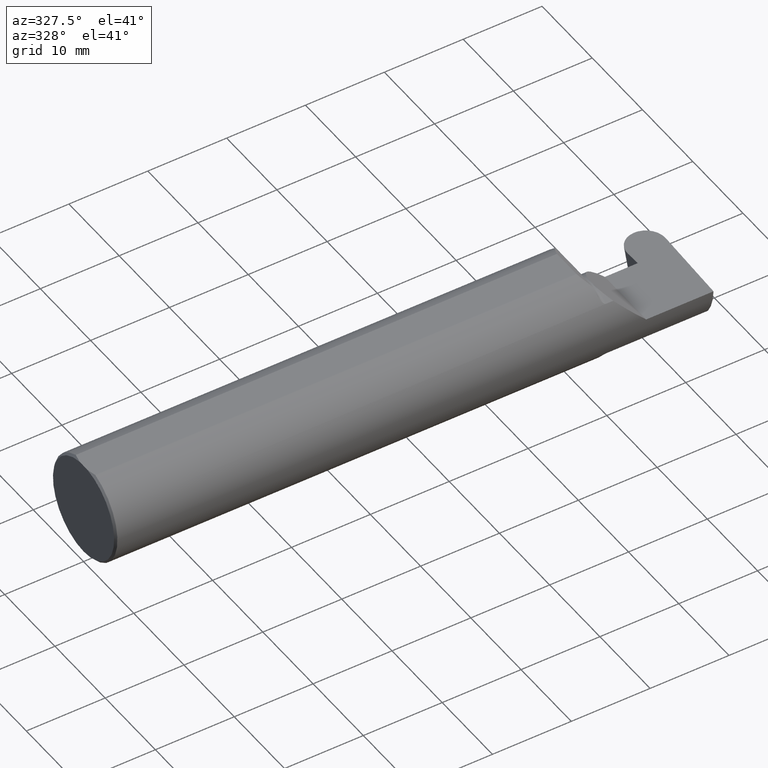
[diagram: clean part render]
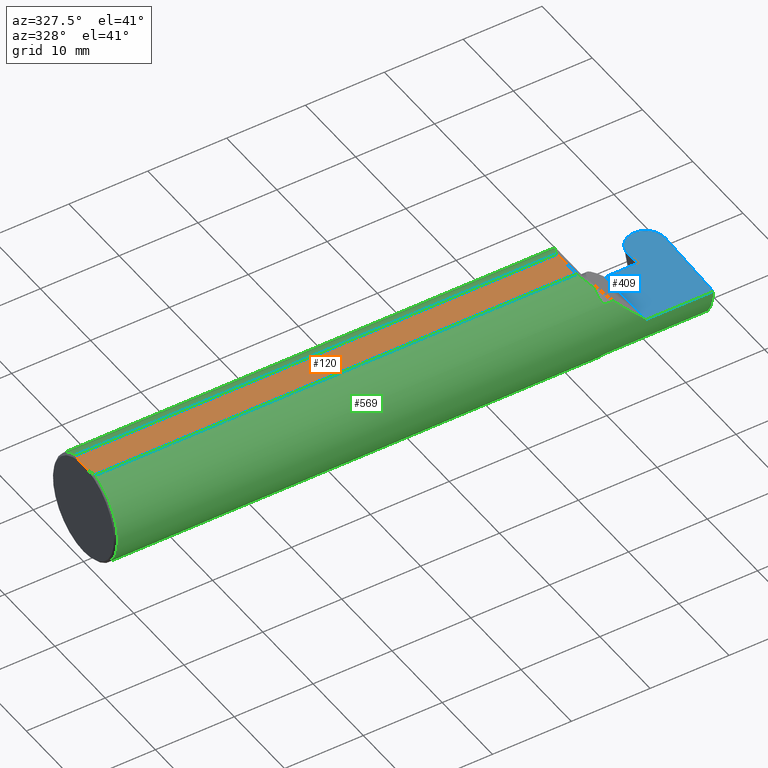
[diagram: same view with three faces highlighted in distinct colors, each labeled with its STEP entity id]
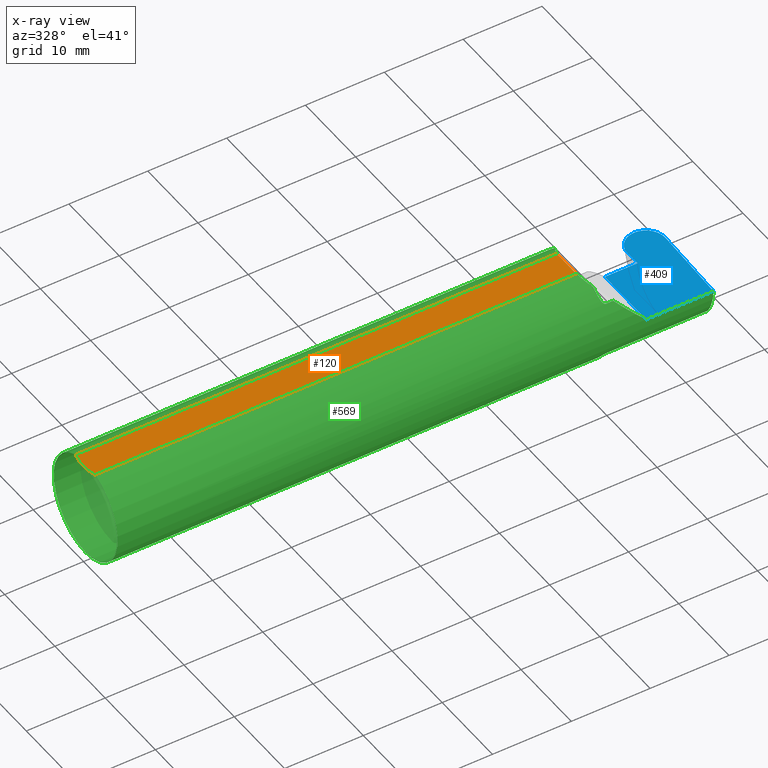
[diagram: x-ray of the same camera — body ghosted, the three highlighted faces saturated]
A machine part, auxiliary view with three faces highlighted in distinct colors.
The next image is the same camera in x-ray (body ghosted, the three faces saturated) — at least one of them is partly hidden behind the body in this view.
Their STEP definitions:

[orange] entity #120 — the highlighted planar face has unit normal (0, 0, 1).
#5 = DIRECTION ( 'NONE',  ( 0.000000000000000000, 0.000000000000000000, 1.000000000000000000 ) ) ;
#9 = CARTESIAN_POINT ( 'NONE',  ( 0.009999999999999927350, -0.07650098038587520299, 0.2378499999999998671 ) ) ;
#16 = EDGE_CURVE ( 'NONE', #714, #628, #762, .T. ) ;
#18 = CARTESIAN_POINT ( 'NONE',  ( 2.412149999999998240, -0.2500000000000000555, 0.2378499999999998948 ) ) ;
#22 = LINE ( 'NONE', #18, #695 ) ;
#45 = EDGE_CURVE ( 'NONE', #637, #474, #257, .T. ) ;
#95 = CARTESIAN_POINT ( 'NONE',  ( 2.412149999999998240, 0.07650098038587530014, 0.2378499999999998948 ) ) ;
#120 = ADVANCED_FACE ( 'NONE', ( #168 ), #473, .T. ) ;
#126 = CARTESIAN_POINT ( 'NONE',  ( 2.412149999999998240, -0.07650098038587530014, 0.2378499999999998948 ) ) ;
#153 = ORIENTED_EDGE ( 'NONE', *, *, #462, .T. ) ;
#164 = CARTESIAN_POINT ( 'NONE',  ( 0.005466242398876407227, 0.06169385855649833772, 0.2378499999999998671 ) ) ;
#168 = FACE_OUTER_BOUND ( 'NONE', #525, .T. ) ;
#175 = DIRECTION ( 'NONE',  ( 1.000000000000000000, 0.000000000000000000, -0.000000000000000000 ) ) ;
#212 = ORIENTED_EDGE ( 'NONE', *, *, #445, .F. ) ;
#231 = CARTESIAN_POINT ( 'NONE',  ( 0.001983148254845710189, -0.04629825796642594860, 0.2378499999999998671 ) ) ;
#237 = DIRECTION ( 'NONE',  ( 1.000000000000000000, 0.000000000000000000, 0.000000000000000000 ) ) ;
#246 = ORIENTED_EDGE ( 'NONE', *, *, #16, .F. ) ;
#257 = B_SPLINE_CURVE_WITH_KNOTS ( 'NONE', 3,
 ( #9, #668, #231, #728 ),
 .UNSPECIFIED., .F., .F.,
 ( 4, 4 ),
 ( 0.01317593029100226111, 0.01435802289191457325 ),
 .UNSPECIFIED. ) ;
#277 = ORIENTED_EDGE ( 'NONE', *, *, #580, .T. ) ;
#301 = CARTESIAN_POINT ( 'NONE',  ( 0.000000000000000000, -0.07650098038587520299, 0.2378499999999998671 ) ) ;
#302 = CARTESIAN_POINT ( 'NONE',  ( 0.002005502345409073024, 0.04647171987093980799, 0.2378499999999998671 ) ) ;
#316 = CARTESIAN_POINT ( 'NONE',  ( 0.009999999999999927350, -0.07650098038587520299, 0.2378499999999998671 ) ) ;
#318 = VERTEX_POINT ( 'NONE', #95 ) ;
#335 = CARTESIAN_POINT ( 'NONE',  ( 0.000000000000000000, 0.03090954545120574992, 0.2378499999999998671 ) ) ;
#355 = VECTOR ( 'NONE', #237, 39.37007874015748143 ) ;
#374 = LINE ( 'NONE', #301, #355 ) ;
#398 = DIRECTION ( 'NONE',  ( -0.000000000000000000, 1.000000000000000000, -0.000000000000000000 ) ) ;
#411 = LINE ( 'NONE', #735, #626 ) ;
#445 = EDGE_CURVE ( 'NONE', #474, #714, #457, .T. ) ;
#449 = ORIENTED_EDGE ( 'NONE', *, *, #667, .T. ) ;
#457 = LINE ( 'NONE', #716, #521 ) ;
#462 = EDGE_CURVE ( 'NONE', #318, #628, #411, .T. ) ;
#473 = PLANE ( 'NONE',  #724 ) ;
#474 = VERTEX_POINT ( 'NONE', #666 ) ;
#490 = DIRECTION ( 'NONE',  ( 0.000000000000000000, 1.000000000000000000, 0.000000000000000000 ) ) ;
#521 = VECTOR ( 'NONE', #398, 39.37007874015748143 ) ;
#525 = EDGE_LOOP ( 'NONE', ( #449, #277, #153, #246, #212, #565 ) ) ;
#565 = ORIENTED_EDGE ( 'NONE', *, *, #45, .F. ) ;
#580 = EDGE_CURVE ( 'NONE', #683, #318, #22, .T. ) ;
#583 = CARTESIAN_POINT ( 'NONE',  ( 0.000000000000000000, 0.03090954545120574992, 0.2378499999999998671 ) ) ;
#605 = CARTESIAN_POINT ( 'NONE',  ( 3.501298404146671484, 0.2498499999999998500, 0.2378499999999998671 ) ) ;
#626 = VECTOR ( 'NONE', #727, 39.37007874015748143 ) ;
#628 = VERTEX_POINT ( 'NONE', #630 ) ;
#630 = CARTESIAN_POINT ( 'NONE',  ( 0.009999999999999927350, 0.07650098038587520299, 0.2378499999999998671 ) ) ;
#637 = VERTEX_POINT ( 'NONE', #316 ) ;
#662 = CARTESIAN_POINT ( 'NONE',  ( 0.009999999999999927350, 0.07650098038587520299, 0.2378499999999998671 ) ) ;
#666 = CARTESIAN_POINT ( 'NONE',  ( 0.000000000000000000, -0.03090954545120560767, 0.2378499999999998671 ) ) ;
#667 = EDGE_CURVE ( 'NONE', #637, #683, #374, .T. ) ;
#668 = CARTESIAN_POINT ( 'NONE',  ( 0.005459900170181729989, -0.06167314502012864741, 0.2378499999999998671 ) ) ;
#683 = VERTEX_POINT ( 'NONE', #126 ) ;
#695 = VECTOR ( 'NONE', #490, 39.37007874015748143 ) ;
#714 = VERTEX_POINT ( 'NONE', #335 ) ;
#716 = CARTESIAN_POINT ( 'NONE',  ( 0.000000000000000000, 0.2498499999999998500, 0.2378499999999998671 ) ) ;
#724 = AXIS2_PLACEMENT_3D ( 'NONE', #605, #5, #175 ) ;
#727 = DIRECTION ( 'NONE',  ( -1.000000000000000000, -0.000000000000000000, -0.000000000000000000 ) ) ;
#728 = CARTESIAN_POINT ( 'NONE',  ( 0.000000000000000000, -0.03090954545120560767, 0.2378499999999998671 ) ) ;
#735 = CARTESIAN_POINT ( 'NONE',  ( 0.000000000000000000, 0.07650098038587520299, 0.2378499999999998671 ) ) ;
#762 = B_SPLINE_CURVE_WITH_KNOTS ( 'NONE', 3,
 ( #583, #302, #164, #662 ),
 .UNSPECIFIED., .F., .F.,
 ( 4, 4 ),
 ( 0.01593449416844765903, 0.01712021724825598876 ),
 .UNSPECIFIED. ) ;

[blue] entity #409 — the highlighted planar face has unit normal (-0, 0, -1).
#13 = CARTESIAN_POINT ( 'NONE',  ( 2.650000000000000355, -0.2500000000000000555, 4.286263797015729199E-17 ) ) ;
#15 = ORIENTED_EDGE ( 'NONE', *, *, #199, .T. ) ;
#19 = VECTOR ( 'NONE', #697, 39.37007874015748143 ) ;
#27 = ORIENTED_EDGE ( 'NONE', *, *, #691, .F. ) ;
#28 = CARTESIAN_POINT ( 'NONE',  ( 2.906528048425327970, 0.2471499999999999808, 0.000000000000000000 ) ) ;
#71 = EDGE_CURVE ( 'NONE', #748, #533, #106, .T. ) ;
#81 = DIRECTION ( 'NONE',  ( -0.03489949670249350294, 0.9993908270190959842, -0.000000000000000000 ) ) ;
#91 = CARTESIAN_POINT ( 'NONE',  ( 2.803339167728504666, 0.07414999999999977165, 0.000000000000000000 ) ) ;
#106 = LINE ( 'NONE', #348, #535 ) ;
#107 = VECTOR ( 'NONE', #614, 39.37007874015748143 ) ;
#113 = DIRECTION ( 'NONE',  ( -0.03489949670249513358, -0.9993908270190959842, 0.000000000000000000 ) ) ;
#117 = CARTESIAN_POINT ( 'NONE',  ( 2.811836707554793424, 0.1469935636673020407, 0.000000000000000000 ) ) ;
#119 = CARTESIAN_POINT ( 'NONE',  ( -3.937007874019685528E-05, 0.2471499999999999808, 0.000000000000000000 ) ) ;
#123 = DIRECTION ( 'NONE',  ( 1.000000000000000000, -0.000000000000000000, -0.000000000000000000 ) ) ;
#139 = VERTEX_POINT ( 'NONE', #117 ) ;
#152 = CARTESIAN_POINT ( 'NONE',  ( 2.650000000000000355, 0.07414999999999984104, 4.286263797015729199E-17 ) ) ;
#180 = VECTOR ( 'NONE', #123, 39.37007874015748143 ) ;
#195 = ORIENTED_EDGE ( 'NONE', *, *, #71, .F. ) ;
#199 = EDGE_CURVE ( 'NONE', #281, #376, #279, .T. ) ;
#204 = VECTOR ( 'NONE', #305, 39.37007874015748143 ) ;
#218 = EDGE_CURVE ( 'NONE', #350, #507, #623, .T. ) ;
#236 = EDGE_CURVE ( 'NONE', #507, #139, #435, .T. ) ;
#238 = CARTESIAN_POINT ( 'NONE',  ( 2.999847912445206877, 0.1469935636673019297, 0.000000000000000000 ) ) ;
#239 = LINE ( 'NONE', #749, #107 ) ;
#240 = CARTESIAN_POINT ( 'NONE',  ( 2.905156571574672331, 0.2471499999999999808, 0.000000000000000000 ) ) ;
#248 = EDGE_CURVE ( 'NONE', #292, #139, #443, .T. ) ;
#270 = DIRECTION ( 'NONE',  ( -1.224646799147351975E-16, 0.000000000000000000, -1.000000000000000000 ) ) ;
#279 =( BOUNDED_CURVE ( )  B_SPLINE_CURVE ( 3, ( #625, #572, #698, #506 ),
 .UNSPECIFIED., .F., .T. ) 
 B_SPLINE_CURVE_WITH_KNOTS ( ( 4, 4 ),
 ( 1.637964922114650168, 3.237953570749836807 ),
 .UNSPECIFIED. ) 
 CURVE ( )  GEOMETRIC_REPRESENTATION_ITEM ( )  RATIONAL_B_SPLINE_CURVE ( ( 1.000000000000000000, 0.7978071872141920817, 0.7978071872141920817, 1.000000000000000000 ) ) 
 REPRESENTATION_ITEM ( '' )  );
#281 = VERTEX_POINT ( 'NONE', #238 ) ;
#292 = VERTEX_POINT ( 'NONE', #682 ) ;
#305 = DIRECTION ( 'NONE',  ( 1.000000000000000000, -0.000000000000000000, -0.000000000000000000 ) ) ;
#308 = CARTESIAN_POINT ( 'NONE',  ( 2.848790630771113275, 0.2471500000000001473, 1.845438088445658575E-17 ) ) ;
#314 = CARTESIAN_POINT ( 'NONE',  ( 2.809800481473789358, 0.2053034494642216046, 2.322929703798115353E-17 ) ) ;
#320 = CARTESIAN_POINT ( 'NONE',  ( 2.811741978320692059, 0.1497062540083303195, 0.000000000000000000 ) ) ;
#326 = PLANE ( 'NONE',  #450 ) ;
#333 = ORIENTED_EDGE ( 'NONE', *, *, #495, .F. ) ;
#348 = CARTESIAN_POINT ( 'NONE',  ( 4.499279347985562423E-32, -0.2498499999999999610, 3.673940397442054938E-16 ) ) ;
#350 = VERTEX_POINT ( 'NONE', #91 ) ;
#361 = CARTESIAN_POINT ( 'NONE',  ( 2.999942641679308242, 0.1497062540083303195, 0.000000000000000000 ) ) ;
#365 = VECTOR ( 'NONE', #81, 39.37007874015748854 ) ;
#376 = VERTEX_POINT ( 'NONE', #28 ) ;
#395 = CARTESIAN_POINT ( 'NONE',  ( 3.000000000000000444, -0.2500000000000000555, 0.000000000000000000 ) ) ;
#404 = VERTEX_POINT ( 'NONE', #152 ) ;
#408 = DIRECTION ( 'NONE',  ( -1.000000000000000000, -0.000000000000000000, -0.000000000000000000 ) ) ;
#409 = ADVANCED_FACE ( 'NONE', ( #518 ), #326, .F. ) ;
#426 = EDGE_LOOP ( 'NONE', ( #27, #787, #530, #470, #607, #669, #195, #333, #15 ) ) ;
#435 = LINE ( 'NONE', #320, #365 ) ;
#443 =( BOUNDED_CURVE ( )  B_SPLINE_CURVE ( 3, ( #240, #308, #314, #631 ),
 .UNSPECIFIED., .F., .T. ) 
 B_SPLINE_CURVE_WITH_KNOTS ( ( 4, 4 ),
 ( 3.045231736429744540, 4.645220385064936508 ),
 .UNSPECIFIED. ) 
 CURVE ( )  GEOMETRIC_REPRESENTATION_ITEM ( )  RATIONAL_B_SPLINE_CURVE ( ( 1.000000000000000000, 0.7978071872141907495, 0.7978071872141907495, 1.000000000000000000 ) ) 
 REPRESENTATION_ITEM ( '' )  );
#450 = AXIS2_PLACEMENT_3D ( 'NONE', #395, #270, #577 ) ;
#470 = ORIENTED_EDGE ( 'NONE', *, *, #218, .F. ) ;
#481 = CARTESIAN_POINT ( 'NONE',  ( 2.650000000000000355, -0.2498499999999999610, 4.286263797015729199E-17 ) ) ;
#495 = EDGE_CURVE ( 'NONE', #281, #748, #740, .T. ) ;
#502 = LINE ( 'NONE', #119, #180 ) ;
#506 = CARTESIAN_POINT ( 'NONE',  ( 2.906528048425327970, 0.2471499999999999808, 0.000000000000000000 ) ) ;
#507 = VERTEX_POINT ( 'NONE', #732 ) ;
#518 = FACE_OUTER_BOUND ( 'NONE', #426, .T. ) ;
#530 = ORIENTED_EDGE ( 'NONE', *, *, #236, .F. ) ;
#533 = VERTEX_POINT ( 'NONE', #481 ) ;
#535 = VECTOR ( 'NONE', #408, 39.37007874015748143 ) ;
#572 = CARTESIAN_POINT ( 'NONE',  ( 3.001884138526210943, 0.2053034494642212715, -3.220644740635474701E-18 ) ) ;
#577 = DIRECTION ( 'NONE',  ( -1.000000000000000000, 0.000000000000000000, 1.224646799147351975E-16 ) ) ;
#606 = EDGE_CURVE ( 'NONE', #533, #404, #753, .T. ) ;
#607 = ORIENTED_EDGE ( 'NONE', *, *, #632, .F. ) ;
#614 = DIRECTION ( 'NONE',  ( 1.000000000000000000, 3.304490794295083593E-16, 0.000000000000000000 ) ) ;
#623 = LINE ( 'NONE', #747, #204 ) ;
#625 = CARTESIAN_POINT ( 'NONE',  ( 2.999847912445206877, 0.1469935636673019297, 0.000000000000000000 ) ) ;
#631 = CARTESIAN_POINT ( 'NONE',  ( 2.811836707554793424, 0.1469935636673020407, 0.000000000000000000 ) ) ;
#632 = EDGE_CURVE ( 'NONE', #404, #350, #239, .T. ) ;
#638 = CARTESIAN_POINT ( 'NONE',  ( 2.985989829834099218, -0.2498499999999999888, 0.000000000000000000 ) ) ;
#643 = VECTOR ( 'NONE', #113, 39.37007874015748143 ) ;
#669 = ORIENTED_EDGE ( 'NONE', *, *, #606, .F. ) ;
#682 = CARTESIAN_POINT ( 'NONE',  ( 2.905156571574672331, 0.2471499999999999808, 0.000000000000000000 ) ) ;
#691 = EDGE_CURVE ( 'NONE', #292, #376, #502, .T. ) ;
#697 = DIRECTION ( 'NONE',  ( -0.000000000000000000, 1.000000000000000000, -0.000000000000000000 ) ) ;
#698 = CARTESIAN_POINT ( 'NONE',  ( 2.962893989228886582, 0.2471499999999998420, 1.554271412889054562E-18 ) ) ;
#732 = CARTESIAN_POINT ( 'NONE',  ( 2.814380460850576249, 0.07414999999999977165, 0.000000000000000000 ) ) ;
#740 = LINE ( 'NONE', #361, #643 ) ;
#747 = CARTESIAN_POINT ( 'NONE',  ( 2.814380460850576249, 0.07414999999999977165, 0.000000000000000000 ) ) ;
#748 = VERTEX_POINT ( 'NONE', #638 ) ;
#749 = CARTESIAN_POINT ( 'NONE',  ( 2.450000000000000178, 0.07414999999999988267, 6.735557395310436353E-17 ) ) ;
#753 = LINE ( 'NONE', #13, #19 ) ;
#787 = ORIENTED_EDGE ( 'NONE', *, *, #248, .T. ) ;

[green] entity #569 — the highlighted cylindrical surface (partial cylindrical patch) has radius 6.3462 mm, axis along (-1, -0, -0).
#8 = CARTESIAN_POINT ( 'NONE',  ( 2.467647060162628136, -0.2062109266231179350, 0.1410799729252293633 ) ) ;
#12 = DIRECTION ( 'NONE',  ( 0.000000000000000000, 0.000000000000000000, -1.000000000000000000 ) ) ;
#14 = CARTESIAN_POINT ( 'NONE',  ( 2.467611663768900510, -0.2061921161193829288, -0.1411075319999378908 ) ) ;
#35 = EDGE_CURVE ( 'NONE', #568, #683, #511, .T. ) ;
#49 = CARTESIAN_POINT ( 'NONE',  ( 2.450000000000000178, -0.1616050818046600723, 0.1905487340154983222 ) ) ;
#50 = CARTESIAN_POINT ( 'NONE',  ( 2.985124127500504265, -0.2498499999999999610, -0.04956584089959709116 ) ) ;
#54 = CARTESIAN_POINT ( 'NONE',  ( 2.450367168219774516, -0.1713400252854600514, 0.1819601557798509184 ) ) ;
#55 = CARTESIAN_POINT ( 'NONE',  ( 2.450000000000000178, -0.1497498664440164995, 0.1999999999999981792 ) ) ;
#59 = DIRECTION ( 'NONE',  ( 1.000000000000000000, 0.000000000000000000, 0.000000000000000000 ) ) ;
#61 = LINE ( 'NONE', #599, #88 ) ;
#62 = CARTESIAN_POINT ( 'NONE',  ( 2.412149999999998240, -0.07650098038587530014, 0.2378499999999998948 ) ) ;
#70 = ORIENTED_EDGE ( 'NONE', *, *, #311, .F. ) ;
#71 = EDGE_CURVE ( 'NONE', #748, #533, #106, .T. ) ;
#77 = ORIENTED_EDGE ( 'NONE', *, *, #383, .F. ) ;
#79 = EDGE_LOOP ( 'NONE', ( #77, #515, #441, #768, #275, #783, #538, #585, #389, #659, #100, #756, #696, #410, #70 ) ) ;
#80 = CARTESIAN_POINT ( 'NONE',  ( 2.450000000000000178, 0.000000000000000000, 0.000000000000000000 ) ) ;
#83 =( BOUNDED_CURVE ( )  B_SPLINE_CURVE ( 3, ( #261, #770, #644, #85 ),
 .UNSPECIFIED., .F., .T. ) 
 B_SPLINE_CURVE_WITH_KNOTS ( ( 4, 4 ),
 ( 4.712388980384689674, 5.298966915116348986 ),
 .UNSPECIFIED. ) 
 CURVE ( )  GEOMETRIC_REPRESENTATION_ITEM ( )  RATIONAL_B_SPLINE_CURVE ( ( 1.000000000000000000, 0.9715321379117536349, 0.9715321379117536349, 1.000000000000000000 ) ) 
 REPRESENTATION_ITEM ( '' )  );
#85 = CARTESIAN_POINT ( 'NONE',  ( 2.511704467739031887, -0.2080850024789288322, 0.1382955322609670801 ) ) ;
#87 = CARTESIAN_POINT ( 'NONE',  ( 2.456147634408388125, -0.1932733126899458809, -0.1584637047788201025 ) ) ;
#88 = VECTOR ( 'NONE', #797, 39.37007874015748143 ) ;
#89 = VERTEX_POINT ( 'NONE', #291 ) ;
#95 = CARTESIAN_POINT ( 'NONE',  ( 2.412149999999998240, 0.07650098038587530014, 0.2378499999999998948 ) ) ;
#97 = CARTESIAN_POINT ( 'NONE',  ( 2.985032866776429650, -0.2080850024789288044, -0.1382955322609669135 ) ) ;
#100 = ORIENTED_EDGE ( 'NONE', *, *, #486, .T. ) ;
#102 = DIRECTION ( 'NONE',  ( 1.000000000000000000, 0.000000000000000000, 0.000000000000000000 ) ) ;
#106 = LINE ( 'NONE', #348, #535 ) ;
#114 = EDGE_CURVE ( 'NONE', #705, #748, #681, .T. ) ;
#121 = CARTESIAN_POINT ( 'NONE',  ( 2.475000000000000089, -0.2080850024789288322, -0.1382955322609670523 ) ) ;
#126 = CARTESIAN_POINT ( 'NONE',  ( 2.412149999999998240, -0.07650098038587530014, 0.2378499999999998948 ) ) ;
#131 = AXIS2_PLACEMENT_3D ( 'NONE', #423, #59, #12 ) ;
#145 = EDGE_CURVE ( 'NONE', #637, #207, #773, .T. ) ;
#146 = AXIS2_PLACEMENT_3D ( 'NONE', #187, #177, #566 ) ;
#172 = CARTESIAN_POINT ( 'NONE',  ( 2.456159563508733878, -0.1933019864360847606, 0.1584298865564834624 ) ) ;
#177 = DIRECTION ( 'NONE',  ( -1.000000000000000000, -0.000000000000000000, -0.000000000000000000 ) ) ;
#182 = CARTESIAN_POINT ( 'NONE',  ( 2.471700027347579542, -0.2077785947292765667, -0.1387580622202828629 ) ) ;
#187 = CARTESIAN_POINT ( 'NONE',  ( 0.000000000000000000, 0.000000000000000000, 0.000000000000000000 ) ) ;
#193 = FACE_OUTER_BOUND ( 'NONE', #79, .T. ) ;
#197 = LINE ( 'NONE', #329, #242 ) ;
#207 = VERTEX_POINT ( 'NONE', #253 ) ;
#216 = VERTEX_POINT ( 'NONE', #760 ) ;
#227 = CARTESIAN_POINT ( 'NONE',  ( 2.452968662030529323, -0.1849684355203375097, 0.1680843977756270868 ) ) ;
#234 = DIRECTION ( 'NONE',  ( 1.000000000000000000, 3.304490794295083593E-16, 0.000000000000000000 ) ) ;
#237 = DIRECTION ( 'NONE',  ( 1.000000000000000000, 0.000000000000000000, 0.000000000000000000 ) ) ;
#242 = VECTOR ( 'NONE', #771, 39.37007874015748143 ) ;
#250 = VERTEX_POINT ( 'NONE', #558 ) ;
#252 = CARTESIAN_POINT ( 'NONE',  ( 2.450000000000000178, -0.1616050818046600723, -0.1905487340154983222 ) ) ;
#253 = CARTESIAN_POINT ( 'NONE',  ( 0.009999999999999927350, 0.000000000000000000, -0.2498499999999999888 ) ) ;
#258 = CARTESIAN_POINT ( 'NONE',  ( 2.433375685911487452, 0.1275470899297183325, 0.2166243140885106555 ) ) ;
#261 = CARTESIAN_POINT ( 'NONE',  ( 2.650000000000000355, -0.2498499999999999610, 4.286263797015729199E-17 ) ) ;
#275 = ORIENTED_EDGE ( 'NONE', *, *, #529, .F. ) ;
#283 = CARTESIAN_POINT ( 'NONE',  ( 2.473329956043142985, -0.2080850024798589215, 0.1382955322595678105 ) ) ;
#291 = CARTESIAN_POINT ( 'NONE',  ( 2.511704467739031887, -0.2080850024789288322, 0.1382955322609670801 ) ) ;
#294 = DIRECTION ( 'NONE',  ( 0.000000000000000000, 1.000000000000000000, 0.000000000000000000 ) ) ;
#297 = CARTESIAN_POINT ( 'NONE',  ( 2.464343523383979662, -0.2041337200786081107, 0.1440846171672515441 ) ) ;
#301 = CARTESIAN_POINT ( 'NONE',  ( 0.000000000000000000, -0.07650098038587520299, 0.2378499999999998671 ) ) ;
#311 = EDGE_CURVE ( 'NONE', #250, #597, #690, .T. ) ;
#316 = CARTESIAN_POINT ( 'NONE',  ( 0.009999999999999927350, -0.07650098038587520299, 0.2378499999999998671 ) ) ;
#318 = VERTEX_POINT ( 'NONE', #95 ) ;
#325 = DIRECTION ( 'NONE',  ( 1.000000000000000000, 3.304490794295083593E-16, 0.000000000000000000 ) ) ;
#329 = CARTESIAN_POINT ( 'NONE',  ( 2.643342309999999973, -0.2080850024789289432, -0.1382955322609669135 ) ) ;
#332 = CARTESIAN_POINT ( 'NONE',  ( 2.451385488563270432, -0.1808287530430323919, -0.1728790649396289847 ) ) ;
#348 = CARTESIAN_POINT ( 'NONE',  ( 4.499279347985562423E-32, -0.2498499999999999610, 3.673940397442054938E-16 ) ) ;
#352 = CARTESIAN_POINT ( 'NONE',  ( 2.449999999999999734, -0.1665641037263005941, 0.1863429692936364734 ) ) ;
#355 = VECTOR ( 'NONE', #237, 39.37007874015748143 ) ;
#358 = CARTESIAN_POINT ( 'NONE',  ( 2.475000000000000089, -0.2080850024789288877, 0.1382955322609669691 ) ) ;
#362 = CARTESIAN_POINT ( 'NONE',  ( 2.420642670853159650, -0.1029056323555046087, 0.2293573291468382624 ) ) ;
#368 = CARTESIAN_POINT ( 'NONE',  ( 2.473318040126429196, -0.2080850024789289709, -0.1382955322609668025 ) ) ;
#372 = EDGE_CURVE ( 'NONE', #318, #216, #798, .T. ) ;
#374 = LINE ( 'NONE', #301, #355 ) ;
#383 = EDGE_CURVE ( 'NONE', #705, #250, #197, .T. ) ;
#389 = ORIENTED_EDGE ( 'NONE', *, *, #667, .F. ) ;
#390 = CIRCLE ( 'NONE', #694, 0.2498499999999999888 ) ;
#396 = VERTEX_POINT ( 'NONE', #403 ) ;
#403 = CARTESIAN_POINT ( 'NONE',  ( 2.450000000000000178, -0.1616050818046600723, 0.1905487340154983222 ) ) ;
#408 = DIRECTION ( 'NONE',  ( -1.000000000000000000, -0.000000000000000000, -0.000000000000000000 ) ) ;
#410 = ORIENTED_EDGE ( 'NONE', *, *, #509, .F. ) ;
#411 = LINE ( 'NONE', #735, #626 ) ;
#421 = DIRECTION ( 'NONE',  ( 0.000000000000000000, 0.000000000000000000, -1.000000000000000000 ) ) ;
#423 = CARTESIAN_POINT ( 'NONE',  ( 0.009999999999999927350, 0.000000000000000000, 0.000000000000000000 ) ) ;
#441 = ORIENTED_EDGE ( 'NONE', *, *, #71, .T. ) ;
#444 = CARTESIAN_POINT ( 'NONE',  ( 2.450000000000000178, -0.1616050818046600723, -0.1905487340154983222 ) ) ;
#448 = CARTESIAN_POINT ( 'NONE',  ( 2.420642670853159650, 0.1029056323555044561, 0.2293573291468383457 ) ) ;
#462 = EDGE_CURVE ( 'NONE', #318, #628, #411, .T. ) ;
#468 = CARTESIAN_POINT ( 'NONE',  ( 2.433375685911487452, -0.1275470899297185268, 0.2166243140885105445 ) ) ;
#478 = CARTESIAN_POINT ( 'NONE',  ( 2.985032866776429650, -0.2080850024789288044, -0.1382955322609669135 ) ) ;
#479 = VERTEX_POINT ( 'NONE', #358 ) ;
#481 = CARTESIAN_POINT ( 'NONE',  ( 2.650000000000000355, -0.2498499999999999610, 4.286263797015729199E-17 ) ) ;
#486 = EDGE_CURVE ( 'NONE', #207, #628, #710, .T. ) ;
#489 = CARTESIAN_POINT ( 'NONE',  ( 2.984795792828450978, -0.2355204011147991605, -0.09701513151466779894 ) ) ;
#494 = CARTESIAN_POINT ( 'NONE',  ( 2.464302603425053029, -0.2041009206016212163, -0.1441313430770041204 ) ) ;
#509 = EDGE_CURVE ( 'NONE', #597, #216, #738, .T. ) ;
#510 = CARTESIAN_POINT ( 'NONE',  ( 2.450000000000000622, -0.1716188362992551175, -0.1820560320165483525 ) ) ;
#511 =( BOUNDED_CURVE ( )  B_SPLINE_CURVE ( 3, ( #55, #468, #362, #62 ),
 .UNSPECIFIED., .F., .T. ) 
 B_SPLINE_CURVE_WITH_KNOTS ( ( 4, 4 ),
 ( 5.640485106395822790, 5.971999575172441510 ),
 .UNSPECIFIED. ) 
 CURVE ( )  GEOMETRIC_REPRESENTATION_ITEM ( )  RATIONAL_B_SPLINE_CURVE ( ( 1.000000000000000000, 0.9908624633578575480, 0.9908624633578575480, 1.000000000000000000 ) ) 
 REPRESENTATION_ITEM ( '' )  );
#515 = ORIENTED_EDGE ( 'NONE', *, *, #114, .T. ) ;
#529 = EDGE_CURVE ( 'NONE', #479, #89, #61, .T. ) ;
#532 = CARTESIAN_POINT ( 'NONE',  ( 2.471718393013769610, -0.2077830475237241181, 0.1387513848711939279 ) ) ;
#533 = VERTEX_POINT ( 'NONE', #481 ) ;
#535 = VECTOR ( 'NONE', #408, 39.37007874015748143 ) ;
#538 = ORIENTED_EDGE ( 'NONE', *, *, #763, .F. ) ;
#542 = B_SPLINE_CURVE_WITH_KNOTS ( 'NONE', 3,
 ( #49, #352, #54, #545, #227, #172, #612, #677, #297, #8, #593, #532, #283, #786 ),
 .UNSPECIFIED., .F., .F.,
 ( 4, 2, 2, 2, 2, 2, 4 ),
 ( 0.0003834465838148106917, 0.0008781406165086604390, 0.001372834649202510186, 0.001867528681896359717, 0.002114875698243289144, 0.002238549206416754183, 0.002362222714590218788 ),
 .UNSPECIFIED. ) ;
#544 = EDGE_CURVE ( 'NONE', #396, #479, #542, .T. ) ;
#545 = CARTESIAN_POINT ( 'NONE',  ( 2.451849548162864600, -0.1805300287242671831, 0.1728462070311783672 ) ) ;
#549 = CARTESIAN_POINT ( 'NONE',  ( 2.450000000000000178, 0.000000000000000000, 0.000000000000000000 ) ) ;
#558 = CARTESIAN_POINT ( 'NONE',  ( 2.475000000000000089, -0.2080850024789288322, -0.1382955322609670523 ) ) ;
#566 = DIRECTION ( 'NONE',  ( 0.000000000000000000, 0.000000000000000000, 1.000000000000000000 ) ) ;
#568 = VERTEX_POINT ( 'NONE', #692 ) ;
#569 = ADVANCED_FACE ( 'NONE', ( #193 ), #758, .T. ) ;
#584 = CARTESIAN_POINT ( 'NONE',  ( 2.458176740666626170, -0.1972027065478071661, -0.1535263573771917245 ) ) ;
#585 = ORIENTED_EDGE ( 'NONE', *, *, #35, .T. ) ;
#589 = CARTESIAN_POINT ( 'NONE',  ( 2.412149999999998240, 0.07650098038587530014, 0.2378499999999998948 ) ) ;
#593 = CARTESIAN_POINT ( 'NONE',  ( 2.468876997637614590, -0.2068363917296599241, 0.1401586554522232242 ) ) ;
#597 = VERTEX_POINT ( 'NONE', #252 ) ;
#599 = CARTESIAN_POINT ( 'NONE',  ( 2.643342309999999973, -0.2080850024789289432, 0.1382955322609669135 ) ) ;
#612 = CARTESIAN_POINT ( 'NONE',  ( 2.458182335268385366, -0.1972192205116129748, 0.1535061413537213149 ) ) ;
#620 = CARTESIAN_POINT ( 'NONE',  ( 2.468863362722769406, -0.2068301641248768696, -0.1401678546132364145 ) ) ;
#626 = VECTOR ( 'NONE', #727, 39.37007874015748143 ) ;
#627 = AXIS2_PLACEMENT_3D ( 'NONE', #739, #102, #421 ) ;
#628 = VERTEX_POINT ( 'NONE', #630 ) ;
#630 = CARTESIAN_POINT ( 'NONE',  ( 0.009999999999999927350, 0.07650098038587520299, 0.2378499999999998671 ) ) ;
#637 = VERTEX_POINT ( 'NONE', #316 ) ;
#638 = CARTESIAN_POINT ( 'NONE',  ( 2.985989829834099218, -0.2498499999999999888, 0.000000000000000000 ) ) ;
#644 = CARTESIAN_POINT ( 'NONE',  ( 2.552984868485331571, -0.2355204011147991605, 0.09701513151466779894 ) ) ;
#648 = CARTESIAN_POINT ( 'NONE',  ( 2.462579853086619863, -0.2024300470081733527, -0.1464774911482688013 ) ) ;
#659 = ORIENTED_EDGE ( 'NONE', *, *, #145, .T. ) ;
#667 = EDGE_CURVE ( 'NONE', #637, #683, #374, .T. ) ;
#677 = CARTESIAN_POINT ( 'NONE',  ( 2.462616400345755796, -0.2024684335577099925, 0.1464246884265641147 ) ) ;
#681 =( BOUNDED_CURVE ( )  B_SPLINE_CURVE ( 3, ( #478, #489, #50, #736 ),
 .UNSPECIFIED., .F., .F. ) 
 B_SPLINE_CURVE_WITH_KNOTS ( ( 4, 4 ),
 ( 6.160376845738952944, 6.746954780470612256 ),
 .UNSPECIFIED. ) 
 CURVE ( )  GEOMETRIC_REPRESENTATION_ITEM ( )  RATIONAL_B_SPLINE_CURVE ( ( 1.000000000000000000, 0.9715321379117536349, 0.9715321379117536349, 1.000000000000000000 ) ) 
 REPRESENTATION_ITEM ( '' )  );
#683 = VERTEX_POINT ( 'NONE', #126 ) ;
#690 = B_SPLINE_CURVE_WITH_KNOTS ( 'NONE', 3,
 ( #121, #368, #182, #620, #14, #494, #648, #584, #87, #332, #510, #444 ),
 .UNSPECIFIED., .F., .F.,
 ( 4, 2, 2, 2, 2, 4 ),
 ( 1.964491429112497443E-07, 0.0001260981470478314017, 0.0002519998449527515220, 0.0005038032407626204939, 0.001007410032382358329, 0.002014623615621832266 ),
 .UNSPECIFIED. ) ;
#692 = CARTESIAN_POINT ( 'NONE',  ( 2.450000000000000178, -0.1497498664440164995, 0.1999999999999981792 ) ) ;
#694 = AXIS2_PLACEMENT_3D ( 'NONE', #80, #325, #706 ) ;
#696 = ORIENTED_EDGE ( 'NONE', *, *, #372, .T. ) ;
#705 = VERTEX_POINT ( 'NONE', #97 ) ;
#706 = DIRECTION ( 'NONE',  ( 0.000000000000000000, 1.000000000000000000, 0.000000000000000000 ) ) ;
#707 = CARTESIAN_POINT ( 'NONE',  ( 2.450000000000000178, 0.1497498664440163607, 0.1999999999999982903 ) ) ;
#710 = CIRCLE ( 'NONE', #627, 0.2498499999999999888 ) ;
#727 = DIRECTION ( 'NONE',  ( -1.000000000000000000, -0.000000000000000000, -0.000000000000000000 ) ) ;
#731 = EDGE_CURVE ( 'NONE', #533, #89, #83, .T. ) ;
#735 = CARTESIAN_POINT ( 'NONE',  ( 0.000000000000000000, 0.07650098038587520299, 0.2378499999999998671 ) ) ;
#736 = CARTESIAN_POINT ( 'NONE',  ( 2.985989829834099218, -0.2498499999999999888, 0.000000000000000000 ) ) ;
#738 = CIRCLE ( 'NONE', #789, 0.2498499999999999888 ) ;
#739 = CARTESIAN_POINT ( 'NONE',  ( 0.009999999999999927350, 0.000000000000000000, 0.000000000000000000 ) ) ;
#748 = VERTEX_POINT ( 'NONE', #638 ) ;
#756 = ORIENTED_EDGE ( 'NONE', *, *, #462, .F. ) ;
#758 = CYLINDRICAL_SURFACE ( 'NONE', #146, 0.2498499999999999888 ) ;
#760 = CARTESIAN_POINT ( 'NONE',  ( 2.450000000000000178, 0.1497498664440163607, 0.1999999999999982903 ) ) ;
#763 = EDGE_CURVE ( 'NONE', #568, #396, #390, .T. ) ;
#768 = ORIENTED_EDGE ( 'NONE', *, *, #731, .T. ) ;
#770 = CARTESIAN_POINT ( 'NONE',  ( 2.600434159100402987, -0.2498499999999999610, 0.04956584089959713973 ) ) ;
#771 = DIRECTION ( 'NONE',  ( -1.000000000000000000, -3.304490794295083593E-16, -0.000000000000000000 ) ) ;
#773 = CIRCLE ( 'NONE', #131, 0.2498499999999999888 ) ;
#783 = ORIENTED_EDGE ( 'NONE', *, *, #544, .F. ) ;
#786 = CARTESIAN_POINT ( 'NONE',  ( 2.475000000000000089, -0.2080850024789288877, 0.1382955322609669691 ) ) ;
#789 = AXIS2_PLACEMENT_3D ( 'NONE', #549, #234, #294 ) ;
#797 = DIRECTION ( 'NONE',  ( 1.000000000000000000, 3.304490794295083593E-16, 0.000000000000000000 ) ) ;
#798 =( BOUNDED_CURVE ( )  B_SPLINE_CURVE ( 3, ( #589, #448, #258, #707 ),
 .UNSPECIFIED., .F., .F. ) 
 B_SPLINE_CURVE_WITH_KNOTS ( ( 4, 4 ),
 ( 0.3111857320071445554, 0.6427002007837626651 ),
 .UNSPECIFIED. ) 
 CURVE ( )  GEOMETRIC_REPRESENTATION_ITEM ( )  RATIONAL_B_SPLINE_CURVE ( ( 1.000000000000000000, 0.9908624633578575480, 0.9908624633578575480, 1.000000000000000000 ) ) 
 REPRESENTATION_ITEM ( '' )  );